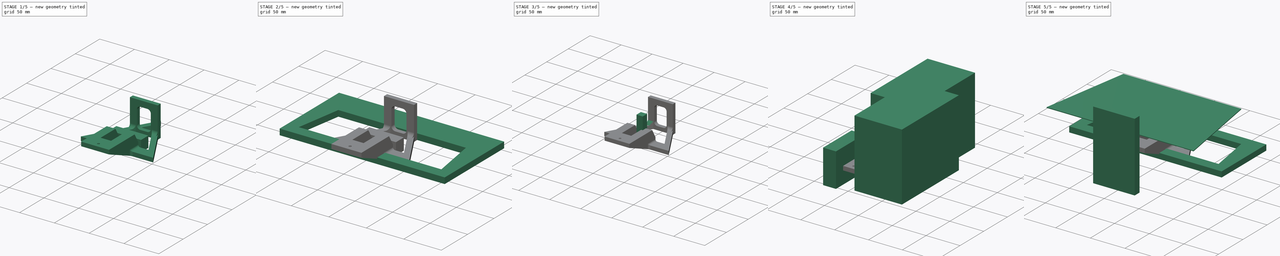
[diagram: build sequence overview — one tinted view per stage of 5, left to right]
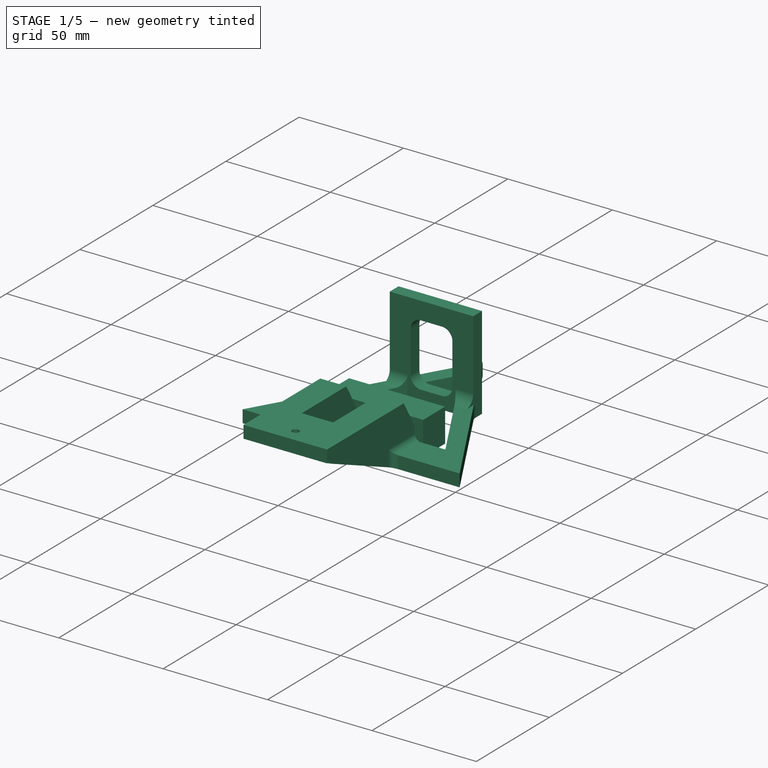
[diagram: stage 1 of 5 — iso view after this stage's code; geometry added in this stage tinted green]
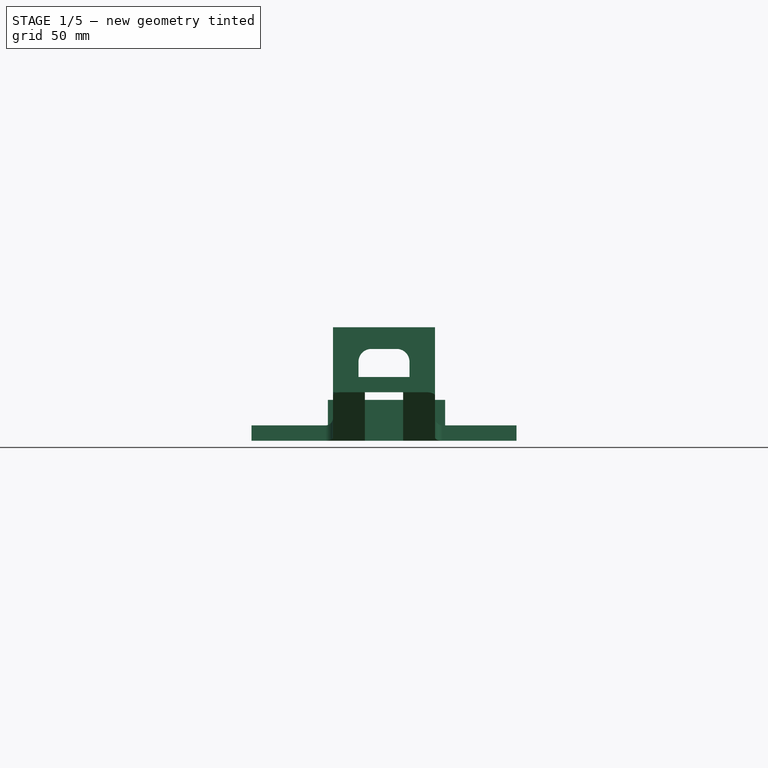
[diagram: stage 1 of 5 — front view after this stage's code; geometry added in this stage tinted green]
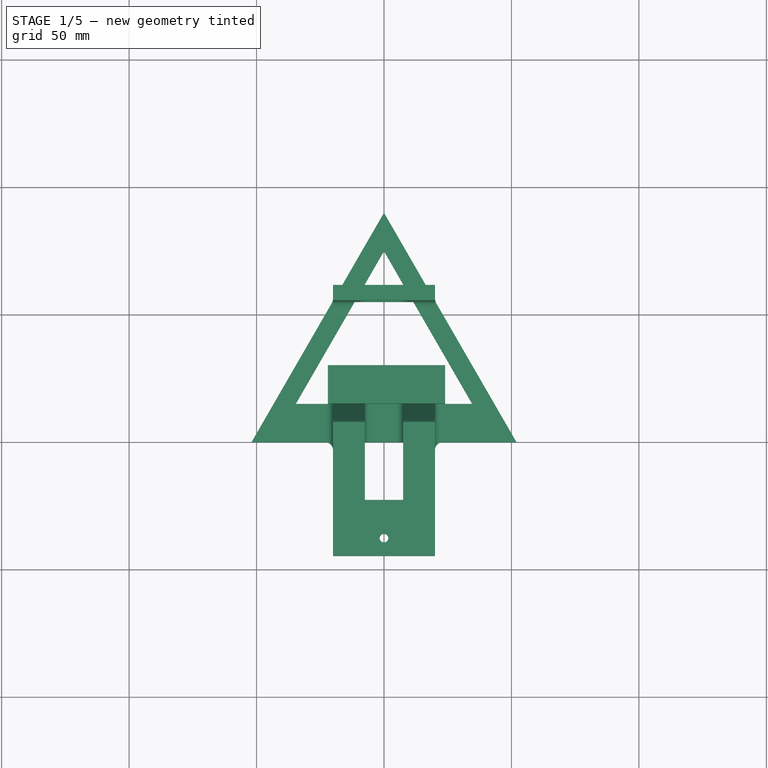
[diagram: stage 1 of 5 — top view after this stage's code; geometry added in this stage tinted green]
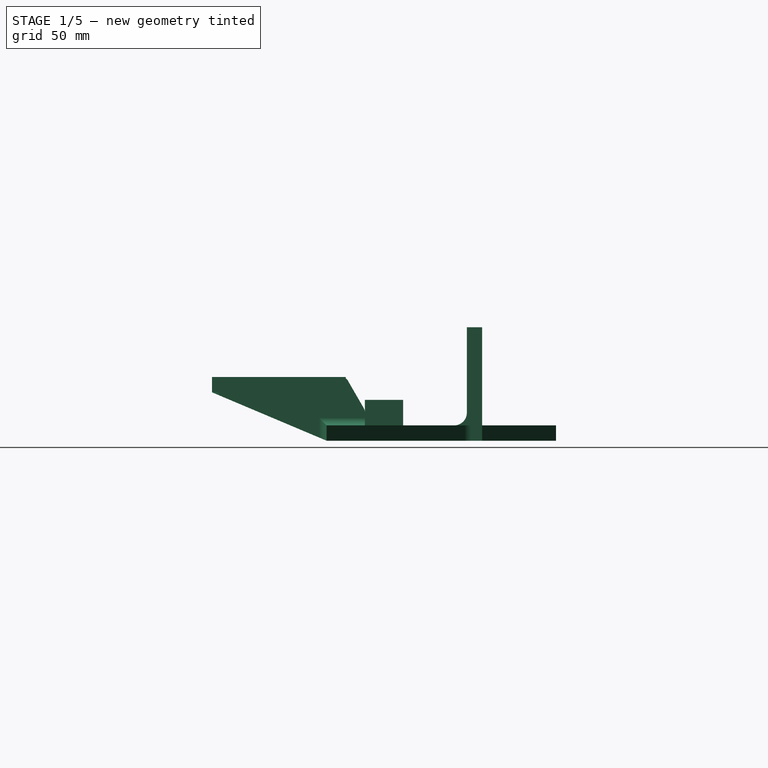
[diagram: stage 1 of 5 — right view after this stage's code; geometry added in this stage tinted green]
FCSTD DOCUMENT  (FreeCAD 0.18R4 (GitTag))
Label: soporte_celular_auto_v2
License: All rights reserved
LicenseURL: http://en.wikipedia.org/wiki/All_rights_reserved
objects: Part::Box×32, Part::Cut×26, Part::Fillet×17, Part::Extrusion×12, Sketcher::SketchObject×11, Part::MultiFuse×9, Part::Feature×7, Part::Prism×4, Part::Cylinder×3, Part::Chamfer×1
note: 122 computed .brp shape members not serialized (recipe doc carries the construction recipe); baked Part::Feature solids carry a one-line shape summary decoded from their .brp

FEATURE [Part::Box] Box021  label="Cube020"
  AttacherType = Attacher::AttachEngine3D
  Height = 22
  Length = 12.5
  Placement = pos=(7.5,0,3) rot=(0,0,1;0rad)
  Width = 7.5
FEATURE [Part::Cylinder] Cylinder002
  Angle = 360
  AttacherType = Attacher::AttachEngine3D
  Height = 30
  Placement = pos=(0,7,0) rot=(0,0,1;0rad)
  Radius = 1.7
FEATURE [Part::Prism] Prism004
  AttacherType = Attacher::AttachEngine3D
  Circumradius = 45
  Height = 6
  Placement = pos=(0,23,0) rot=(0,0,-1;0.523599rad)
  Polygon = 3
FEATURE [Part::Box] Box022  label="Cube021"
  AttacherType = Attacher::AttachEngine3D
  Height = 6
  Length = 40
  Placement = pos=(0,0,20) rot=(0,0,1;0rad)
  Width = 51
FEATURE [Part::Prism] Prism005
  AttacherType = Attacher::AttachEngine3D
  Circumradius = 60
  Height = 6
  Placement = pos=(0,23,0) rot=(0,0,-1;0.523599rad)
  Polygon = 3
FEATURE [Part::Cut] Cut004019
  Base = -> Prism005
  Placement = pos=(0,7,0) rot=(0,0,1;0rad)
  Tool = -> Prism004
FEATURE [Part::Box] Box025  label="Cube024"
  AttacherType = Attacher::AttachEngine3D
  Height = 6
  Length = 15
  Placement = pos=(12.5,22,20) rot=(0,0,1;0rad)
  Width = 70
FEATURE [Part::Cut] Cut004017
  Base = -> Box022
  Placement = pos=(-20,0,-1) rot=(0,0,1;0rad)
  Tool = -> Box025
FEATURE [Part::Cut] Cut004018
  Base = -> Cut004017
  Placement = pos=(0,-45,0) rot=(0,0,1;0rad)
  Tool = -> Cylinder002
FEATURE [Part::Box] Box026  label="Cube025"
  AttacherType = Attacher::AttachEngine3D
  Height = 6
  Length = 32
  Placement = pos=(-16,55,0) rot=(0,0,1;0rad)
  Width = 6
FEATURE [Part::Box] Box027  label="Cube026"
  AttacherType = Attacher::AttachEngine3D
  Height = 22
  Length = 12.5
  Placement = pos=(-20,0,3) rot=(0,0,1;0rad)
  Width = 7.5
FEATURE [Part::MultiFuse] Fusion004006
  Shapes = -> [Cut004018,Box021,Box027]
FEATURE [Part::Box] Box029  label="Cube028"
  AttacherType = Attacher::AttachEngine3D
  Height = 6
  Length = 78
  Placement = pos=(-39,0,0) rot=(0,0,1;0rad)
  Width = 15
FEATURE [Part::Box] Box031  label="Cube030"
  AttacherType = Attacher::AttachEngine3D
  Height = 16
  Length = 46
  Placement = pos=(-22,15,0) rot=(0,0,1;0rad)
  Width = 15
FEATURE [Part::Feature] Cut004022001  label="pieza_sin_refinar_v2.004"
  shape: bbox 103.9 x 106 x 44.5 mm, 42 faces (baked)
FEATURE [Part::Fillet] Fillet008008
  Base = -> Cut004022001
  Edges = 2 edges r=5: [Edge111,Edge116]
FEATURE [Part::Fillet] Fillet008009
  Base = -> Fillet008008
  Edges = 4 edges r=5: [Edge69,Edge70,Edge71,Edge72]
FEATURE [Part::Fillet] Fillet008010
  Base = -> Fillet008009
  Edges = 2 edges r=5: [Edge41,Edge54]
FEATURE [Part::Fillet] Fillet008011
  Base = -> Fillet008010
  Edges = 4 edges r=3: [Edge73,Edge86,Edge90,Edge106]
FEATURE [Part::Fillet] Fillet008012
  Base = -> Fillet008011
  Edges = 2 edges r=3: [Edge130,Edge134]
FEATURE [Part::Fillet] Fillet008013
  Base = -> Fillet008012
  Edges = 4 edges r=3: [Edge54,Edge59,Edge71,Edge75]
FEATURE [Part::Fillet] Fillet008014  label="pieza_v2.3"
  Base = -> Fillet008013
  Edges = 4 edges r=3: [Edge10,Edge55,Edge72,Edge79]
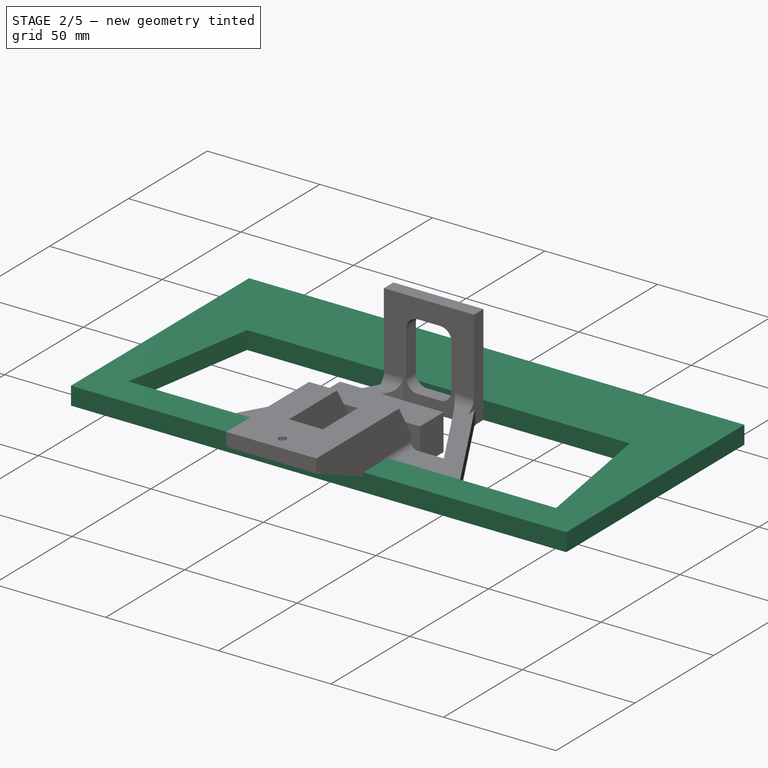
[diagram: stage 2 of 5 — iso view after this stage's code; geometry added in this stage tinted green]
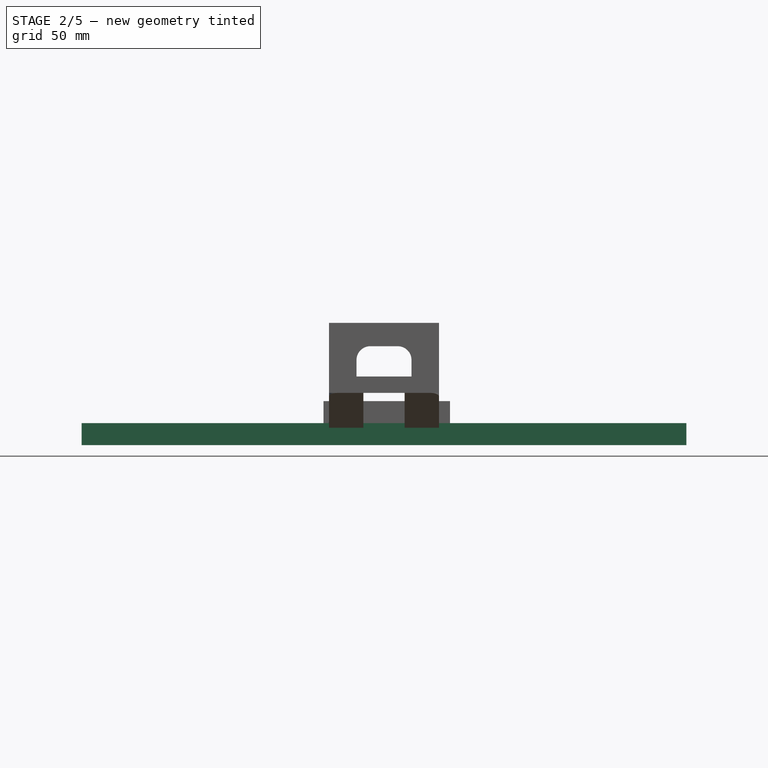
[diagram: stage 2 of 5 — front view after this stage's code; geometry added in this stage tinted green]
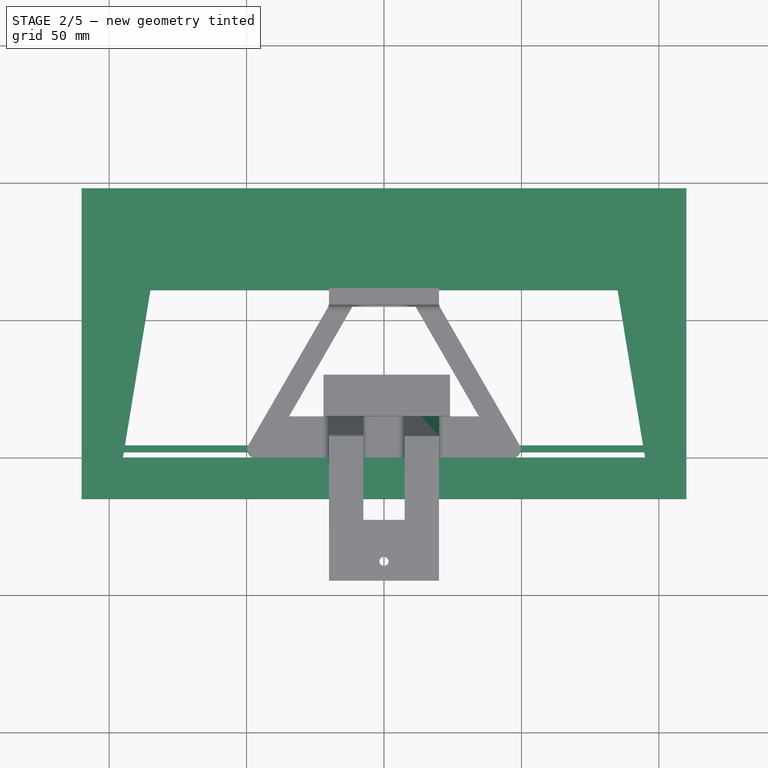
[diagram: stage 2 of 5 — top view after this stage's code; geometry added in this stage tinted green]
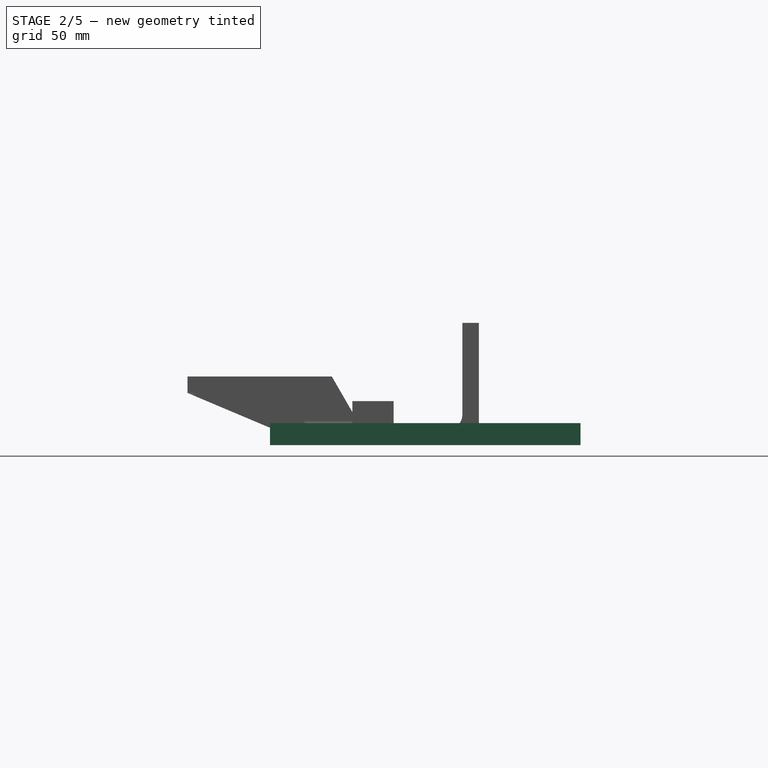
[diagram: stage 2 of 5 — right view after this stage's code; geometry added in this stage tinted green]
FEATURE [Part::Box] Box001  label="Cube001"
  AttacherType = Attacher::AttachEngine3D
  Height = 6
  Length = 32
  Placement = pos=(-16,55,0) rot=(0,0,1;0rad)
  Width = 6
FEATURE [Sketcher::SketchObject] Sketch002
  sketch-geometry (4):
    g0: LineSegment StartX=-95 StartY=0 StartZ=0 EndX=95 EndY=-9e-16 EndZ=0
    g1: LineSegment StartX=-95 StartY=0 StartZ=0 EndX=-85 EndY=61 EndZ=0
    g2: LineSegment StartX=95 StartY=-9e-16 StartZ=0 EndX=85 EndY=61 EndZ=0
    g3: LineSegment StartX=-85 StartY=61 StartZ=0 EndX=85 EndY=61 EndZ=0
  constraints (10):
    c: PointOnObject(g0,g-1)
    c: Symmetric(g0,g0,g-2)
    c: DistanceX(g0,g0) = 190
    c: Coincident(g1,g0)
    c: Coincident(g2,g0)
    c: Coincident(g3,g1)
    c: Coincident(g3,g2)
    c: Symmetric(g1,g2,g-2)
    c: DistanceX(g3,g3) = 170
    c: DistanceY(g0,g2) = 61
FEATURE [Part::Box] Box002  label="Cube002"
  AttacherType = Attacher::AttachEngine3D
  Height = 8
  Length = 220
  Placement = pos=(-110,-15,0) rot=(0,0,1;0rad)
  Width = 113
FEATURE [Part::Extrusion] Extrude001
  Base = -> Sketch002
  Dir = (0,0,1)
  DirMode = 2
  FaceMakerClass = Part::FaceMakerBullseye
  LengthFwd = 10
  LengthRev = 0
  Solid = true
  Symmetric = false
FEATURE [Part::Cut] Cut002  label="molde_cortador001"
  Base = -> Box002
  Tool = -> Extrude001
FEATURE [Part::Box] Box003  label="Cube003"
  AttacherType = Attacher::AttachEngine3D
  Height = 3
  Length = 220
  Placement = pos=(-110,2,0) rot=(0,0,1;0rad)
  Width = 2.5
FEATURE [Part::Box] Box006  label="Cube006"
  AttacherType = Attacher::AttachEngine3D
  Height = 6
  Length = 40
  Placement = pos=(0,0,20) rot=(0,0,1;0rad)
  Width = 51
FEATURE [Part::Box] Box007  label="Cube007"
  AttacherType = Attacher::AttachEngine3D
  Height = 6
  Length = 15
  Placement = pos=(12.5,22,20) rot=(0,0,1;0rad)
  Width = 70
FEATURE [Part::Cut] Cut004005
  Base = -> Box006
  Placement = pos=(-20,0,-1) rot=(0,0,1;0rad)
  Tool = -> Box007
FEATURE [Part::Cylinder] Cylinder
  Angle = 360
  AttacherType = Attacher::AttachEngine3D
  Height = 30
  Placement = pos=(0,7,0) rot=(0,0,1;0rad)
  Radius = 1.7
FEATURE [Part::Cut] Cut004006
  Base = -> Cut004005
  Placement = pos=(0,-45,0) rot=(0,0,1;0rad)
  Tool = -> Cylinder
FEATURE [Part::Box] Box009  label="Cube008"
  AttacherType = Attacher::AttachEngine3D
  Height = 22
  Length = 12.5
  Placement = pos=(7.5,0,3) rot=(0,0,1;0rad)
  Width = 7.5
FEATURE [Part::Box] Box010  label="Cube009"
  AttacherType = Attacher::AttachEngine3D
  Height = 22
  Length = 12.5
  Placement = pos=(-20,0,3) rot=(0,0,1;0rad)
  Width = 7.5
FEATURE [Part::MultiFuse] Fusion004002
  Shapes = -> [Cut004006,Box009,Box010]
FEATURE [Sketcher::SketchObject] Sketch009
  sketch-geometry (4):
    g0: LineSegment StartX=-95 StartY=0 StartZ=0 EndX=95 EndY=-9e-16 EndZ=0
    g1: LineSegment StartX=-95 StartY=0 StartZ=0 EndX=-85 EndY=61 EndZ=0
    g2: LineSegment StartX=95 StartY=-9e-16 StartZ=0 EndX=85 EndY=61 EndZ=0
    g3: LineSegment StartX=-85 StartY=61 StartZ=0 EndX=85 EndY=61 EndZ=0
  constraints (10):
    c: PointOnObject(g0,g-1)
    c: Symmetric(g0,g0,g-2)
    c: DistanceX(g0,g0) = 190
    c: Coincident(g1,g0)
    c: Coincident(g2,g0)
    c: Coincident(g3,g1)
    c: Coincident(g3,g2)
    c: Symmetric(g1,g2,g-2)
    c: DistanceX(g3,g3) = 170
    c: DistanceY(g0,g2) = 61
FEATURE [Part::Extrusion] Extrude011
  Base = -> Sketch009
  Dir = (0,0,1)
  DirMode = 2
  FaceMakerClass = Part::FaceMakerBullseye
  LengthFwd = 10
  LengthRev = 0
  Solid = true
  Symmetric = false
FEATURE [Part::Box] Box023  label="Cube022"
  AttacherType = Attacher::AttachEngine3D
  Height = 3
  Length = 220
  Placement = pos=(-110,2,0) rot=(0,0,1;0rad)
  Width = 2.5
FEATURE [Part::Box] Box024  label="Cube023"
  AttacherType = Attacher::AttachEngine3D
  Height = 8
  Length = 220
  Placement = pos=(-110,-15,0) rot=(0,0,1;0rad)
  Width = 113
FEATURE [Part::Cut] Cut004020  label="molde_cortador002"
  Base = -> Box024
  Tool = -> Extrude011
FEATURE [Part::MultiFuse] Fusion004005
  Shapes = -> [Cut004019,Box026]
FEATURE [Part::Cut] Cut004015  label="base_triangulo001"
  Base = -> Fusion004005
  Tool = -> Cut004020
FEATURE [Part::Cut] Cut004016  label="base_triangulo_con_canaleta001"
  Base = -> Cut004015
  Tool = -> Box023
FEATURE [Sketcher::SketchObject] Sketch010
  ExternalGeometry = -> [Fusion004006,Cut004016]
  MapMode = 5
  Placement = pos=(-20,0,0) rot=(0.57735,-0.57735,-0.57735;2.0944rad)
  Support = -> [Fusion004006]
  sketch-geometry (3):
    g0: LineSegment StartX=-7.5 StartY=0 StartZ=0 EndX=-7.5 EndY=25 EndZ=0
    g1: LineSegment StartX=-7.5 StartY=25 StartZ=0 EndX=-21.9338 EndY=0 EndZ=0
    g2: LineSegment StartX=-21.9338 StartY=0 StartZ=0 EndX=-7.5 EndY=0 EndZ=0
  constraints (8):
    c: Vertical(g0)
    c: Coincident(g0,g1)
    c: Coincident(g1,g2)
    c: Horizontal(g2)
    c: Coincident(g0,g2)
    c: Angle(g2,g1) = 1.0472
    c: DistanceY(g0,g-1) = 0
    c: Coincident(g0,g-3)
FEATURE [Part::Extrusion] Extrude012
  Base = -> Sketch010
  Dir = (-1,0,0)
  DirMode = 2
  FaceMakerClass = Part::FaceMakerBullseye
  LengthFwd = -12.5
  LengthRev = 0
  Placement = pos=(27.5,0,0) rot=(0,0,1;0rad)
  Solid = true
  Symmetric = false
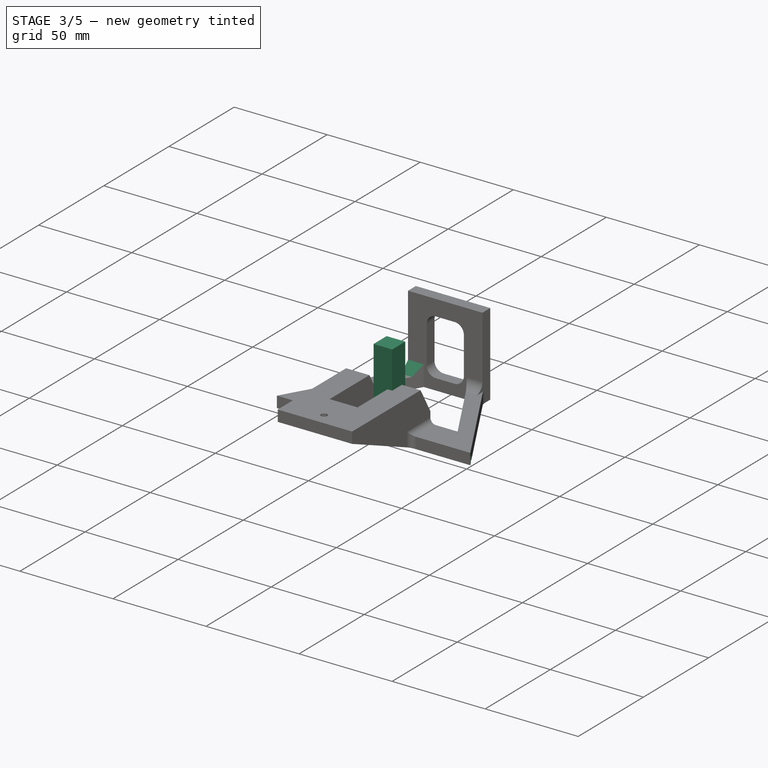
[diagram: stage 3 of 5 — iso view after this stage's code; geometry added in this stage tinted green]
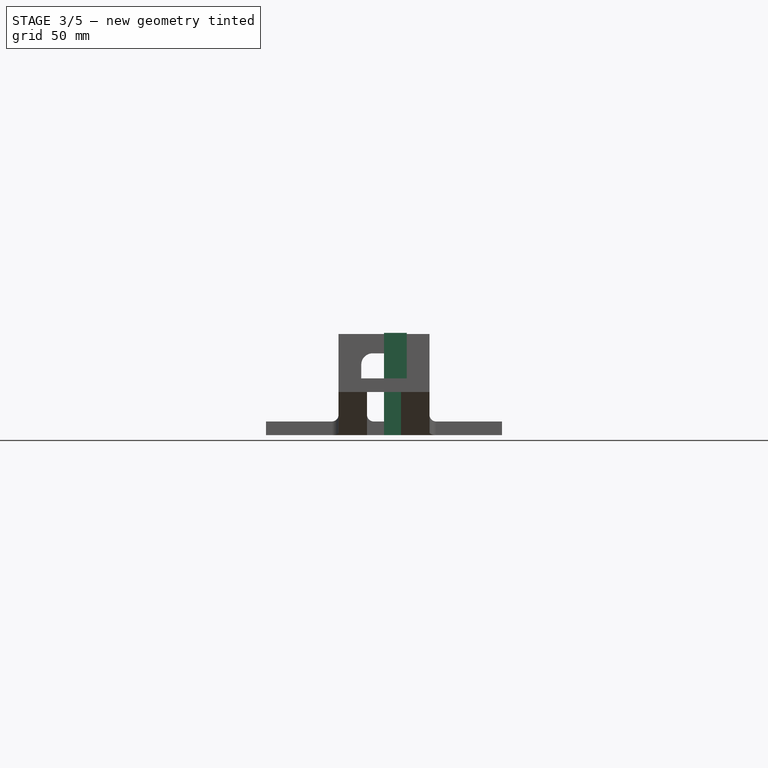
[diagram: stage 3 of 5 — front view after this stage's code; geometry added in this stage tinted green]
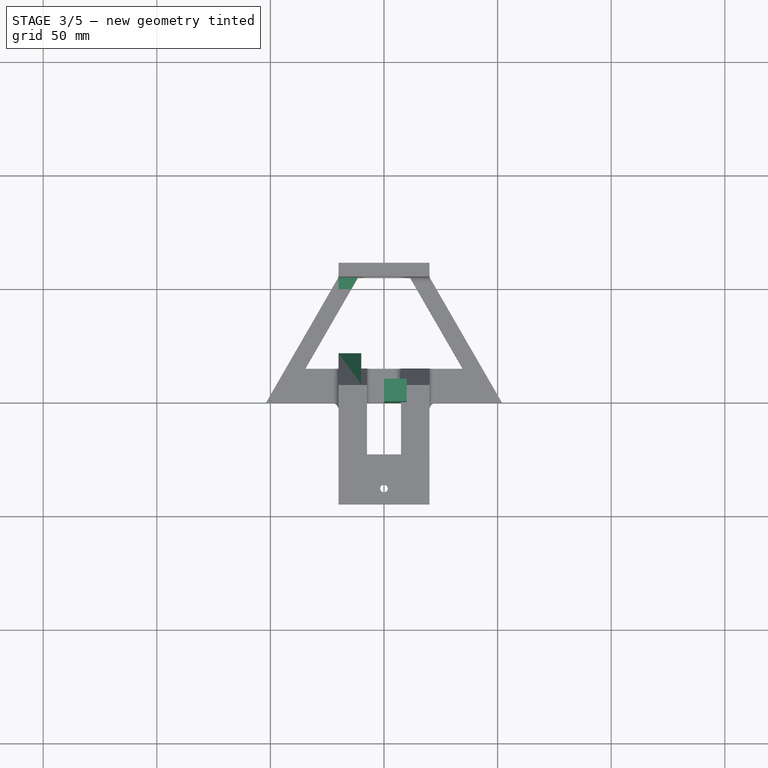
[diagram: stage 3 of 5 — top view after this stage's code; geometry added in this stage tinted green]
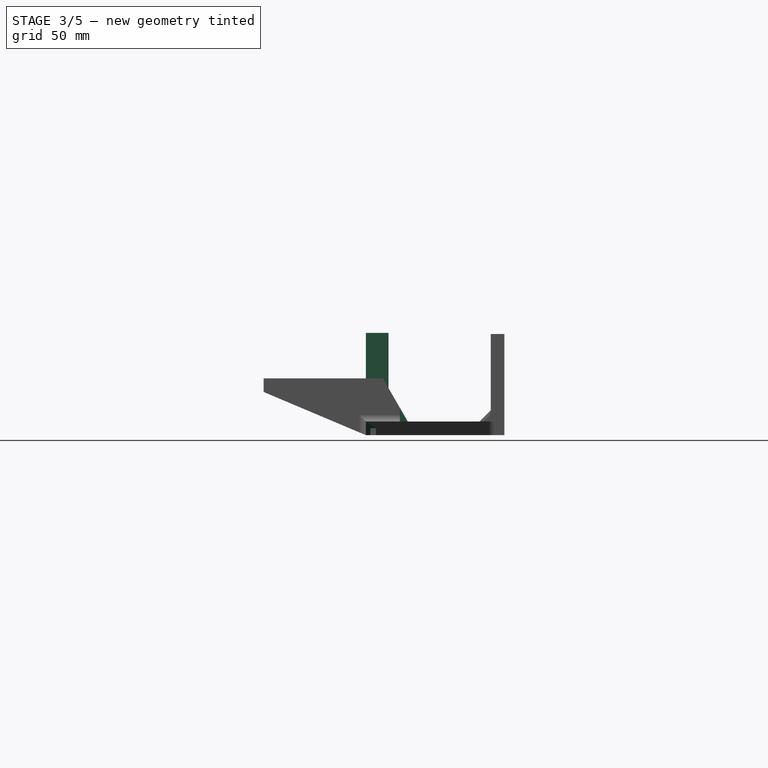
[diagram: stage 3 of 5 — right view after this stage's code; geometry added in this stage tinted green]
FEATURE [Part::Prism] Prism002
  AttacherType = Attacher::AttachEngine3D
  Circumradius = 60
  Height = 6
  Placement = pos=(0,23,0) rot=(0,0,-1;0.523599rad)
  Polygon = 3
FEATURE [Part::Prism] Prism003
  AttacherType = Attacher::AttachEngine3D
  Circumradius = 45
  Height = 6
  Placement = pos=(0,23,0) rot=(0,0,-1;0.523599rad)
  Polygon = 3
FEATURE [Part::Cut] Cut001
  Base = -> Prism002
  Placement = pos=(0,7,0) rot=(0,0,1;0rad)
  Tool = -> Prism003
FEATURE [Part::MultiFuse] Fusion
  Shapes = -> [Cut001,Box001]
FEATURE [Part::Cut] Cut003  label="base_triangulo"
  Base = -> Fusion
  Tool = -> Cut002
FEATURE [Part::Cut] Cut004  label="base_triangulo_con_canaleta"
  Base = -> Cut003
  Tool = -> Box003
FEATURE [Part::Box] Box004  label="Cube004"
  AttacherType = Attacher::AttachEngine3D
  Height = 44.5
  Length = 40
  Placement = pos=(-20,55,0) rot=(0,0,1;0rad)
  Width = 6
FEATURE [Part::Box] Box005  label="Cube005"
  AttacherType = Attacher::AttachEngine3D
  Height = 30
  Length = 20
  Placement = pos=(-10,55,6) rot=(0,0,1;0rad)
  Width = 6
FEATURE [Part::Cut] Cut004004  label="parte_trasera"
  Base = -> Box004
  Tool = -> Box005
FEATURE [Sketcher::SketchObject] Sketch007
  ExternalGeometry = -> [Fusion004002,Cut004]
  MapMode = 5
  Placement = pos=(-20,0,0) rot=(0.57735,-0.57735,-0.57735;2.0944rad)
  Support = -> [Fusion004002]
  sketch-geometry (3):
    g0: LineSegment StartX=0 StartY=0 StartZ=0 EndX=0 EndY=19 EndZ=0
    g1: LineSegment StartX=0 StartY=19 StartZ=0 EndX=45 EndY=19 EndZ=0
    g2: LineSegment StartX=45 StartY=19 StartZ=0 EndX=0 EndY=0 EndZ=0
  constraints (7):
    c: PointOnObject(g0,g-1)
    c: Vertical(g0)
    c: Coincident(g1,g0)
    c: Coincident(g0,g-3)
    c: Coincident(g1,g-3)
    c: Coincident(g2,g1)
    c: Coincident(g2,g0)
FEATURE [Part::Extrusion] Extrude008
  Base = -> Sketch007
  Dir = (-1,0,0)
  DirMode = 2
  FaceMakerClass = Part::FaceMakerBullseye
  LengthFwd = 0
  LengthRev = 12.5
  Solid = true
  Symmetric = false
FEATURE [Part::Extrusion] Extrude009
  Base = -> Sketch007
  Dir = (-1,0,0)
  DirMode = 2
  FaceMakerClass = Part::FaceMakerBullseye
  LengthFwd = 12.5
  LengthRev = 0
  Placement = pos=(40,0,0) rot=(0,0,1;0rad)
  Solid = true
  Symmetric = false
FEATURE [Sketcher::SketchObject] Sketch008
  ExternalGeometry = -> [Fusion004002,Cut004]
  MapMode = 5
  Placement = pos=(-20,0,0) rot=(0.57735,-0.57735,-0.57735;2.0944rad)
  Support = -> [Fusion004002]
  sketch-geometry (3):
    g0: LineSegment StartX=-7.5 StartY=0 StartZ=0 EndX=-7.5 EndY=25 EndZ=0
    g1: LineSegment StartX=-7.5 StartY=25 StartZ=0 EndX=-21.9338 EndY=0 EndZ=0
    g2: LineSegment StartX=-21.9338 StartY=0 StartZ=0 EndX=-7.5 EndY=0 EndZ=0
  constraints (8):
    c: Vertical(g0)
    c: Coincident(g0,g1)
    c: Coincident(g1,g2)
    c: Horizontal(g2)
    c: Coincident(g0,g2)
    c: Angle(g2,g1) = 1.0472
    c: DistanceY(g0,g-1) = 0
    c: Coincident(g0,g-3)
FEATURE [Part::Extrusion] Extrude010
  Base = -> Sketch008
  Dir = (-1,0,0)
  DirMode = 2
  FaceMakerClass = Part::FaceMakerBullseye
  LengthFwd = -12.5
  LengthRev = 0
  Solid = true
  Symmetric = false
FEATURE [Part::MultiFuse] Fusion004007
  Shapes = -> [Extrude010,Extrude012,Extrude009,Extrude008,Fusion004002]
FEATURE [Part::MultiFuse] Fusion004008  label="parte_frontal"
  Shapes = -> [Fusion004006,Fusion004007]
FEATURE [Part::MultiFuse] Fusion004009  label="pieza_sin_refinar"
  Shapes = -> [Cut004004,Cut004016,Fusion004008]
FEATURE [Part::Box] Box028  label="Cube027"
  AttacherType = Attacher::AttachEngine3D
  Height = 113
  Length = 109
  Placement = pos=(-10,-55,0) rot=(0,0,1;0rad)
  Width = 156
FEATURE [Part::Feature] Chamfer001  label="soporte_v2.2_for_test"
  shape: bbox 101 x 106 x 42 mm, 68 faces (baked)
FEATURE [Part::Cut] Cut004021  label="test_v2.2"
  Base = -> Chamfer001
  Tool = -> Box028
FEATURE [Part::MultiFuse] Fusion004009002  label="pieza_sin_refinar_reforzada"
  Shapes = -> [Fusion004009,Box029]
FEATURE [Part::Box] Box030  label="Cube029"
  AttacherType = Attacher::AttachEngine3D
  Height = 45
  Length = 10
  Width = 10
FEATURE [Part::Cut] Cut004022  label="pieza_sin_refinar_v2.3"
  Base = -> Fusion004009002
  Tool = -> Box031
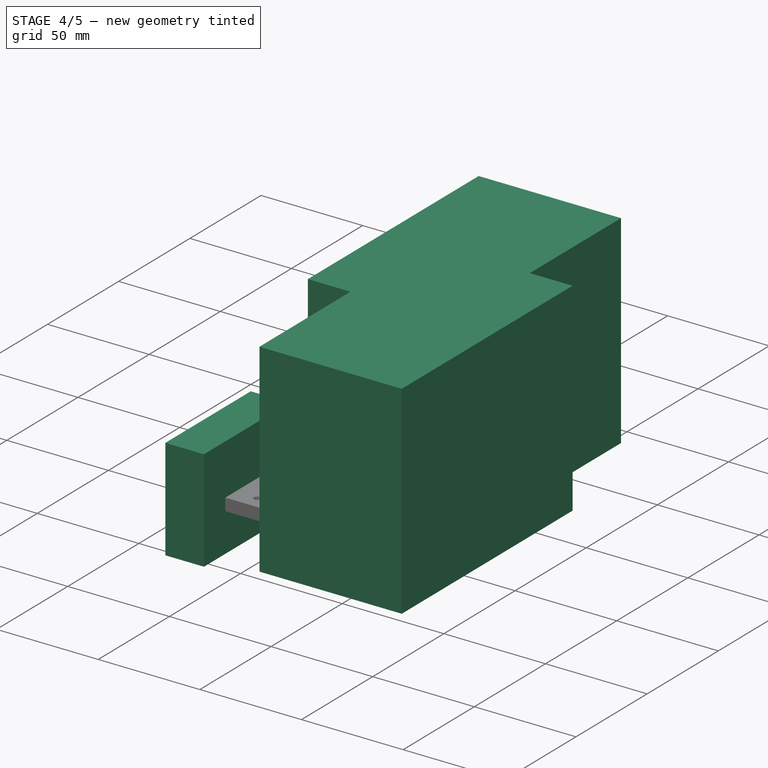
[diagram: stage 4 of 5 — iso view after this stage's code; geometry added in this stage tinted green]
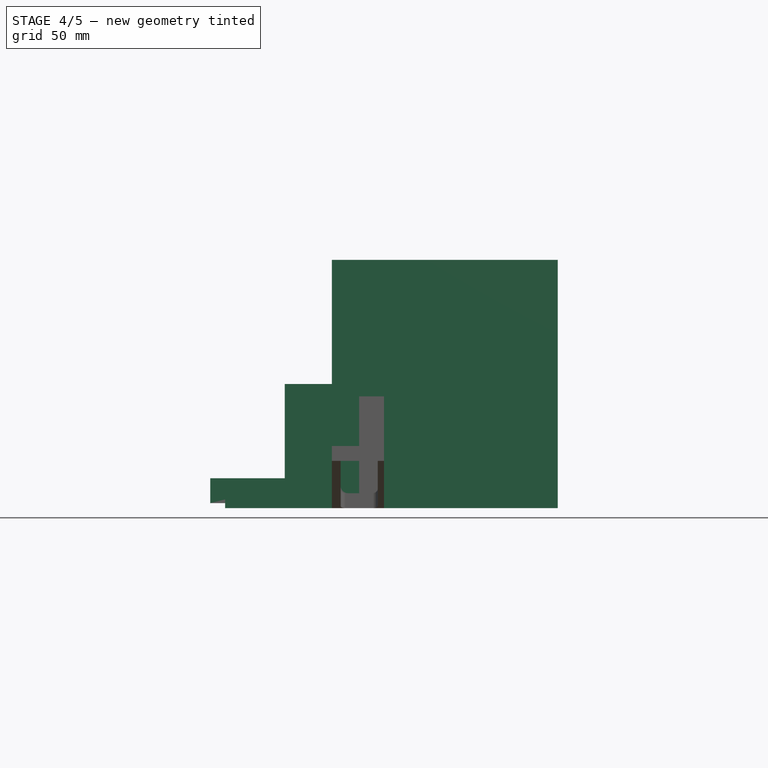
[diagram: stage 4 of 5 — front view after this stage's code; geometry added in this stage tinted green]
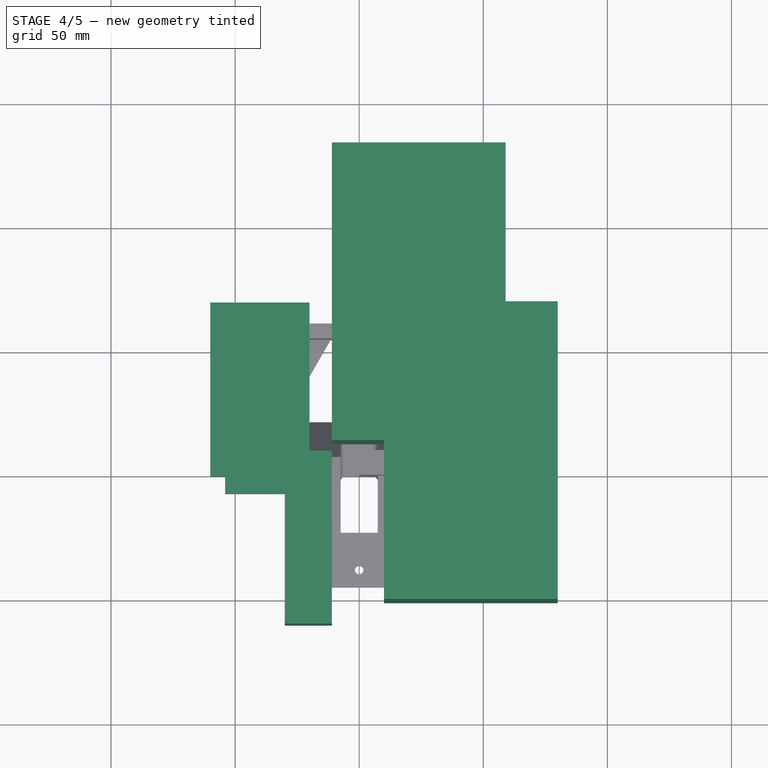
[diagram: stage 4 of 5 — top view after this stage's code; geometry added in this stage tinted green]
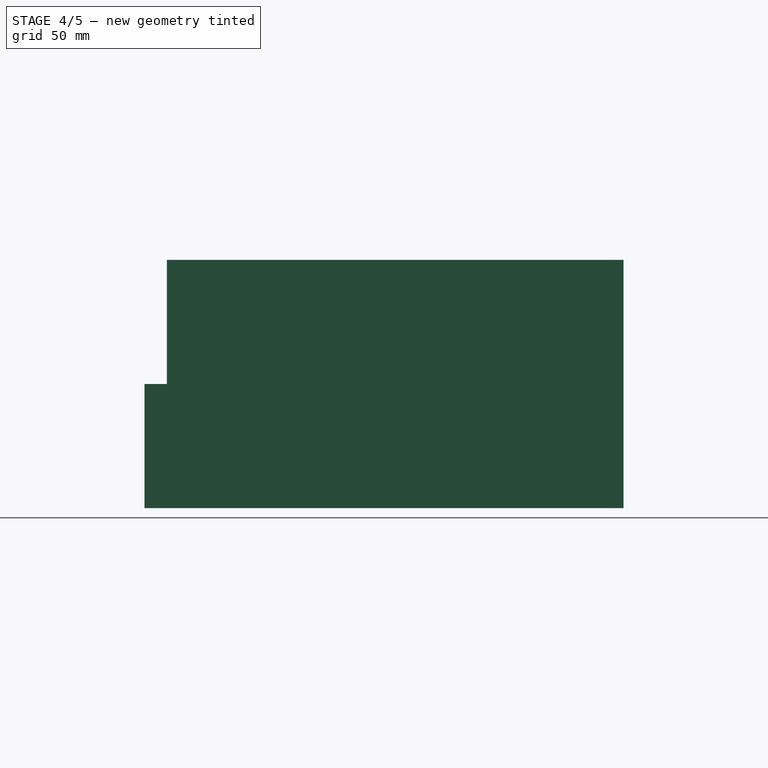
[diagram: stage 4 of 5 — right view after this stage's code; geometry added in this stage tinted green]
FEATURE [Part::Feature] Fillet008001  label="soporte_final_v2.002"
  shape: bbox 99.53 x 106 x 53 mm, 50 faces (baked)
FEATURE [Part::Box] Box011  label="Cube010"
  AttacherType = Attacher::AttachEngine3D
  Height = 100
  Length = 70
  Placement = pos=(10,-51,0) rot=(0,0,1;0rad)
  Width = 120
FEATURE [Part::Box] Box012  label="Cube011"
  AttacherType = Attacher::AttachEngine3D
  Height = 100
  Length = 70
  Placement = pos=(-11,13,0) rot=(0,0,1;0rad)
  Width = 120
FEATURE [Part::Box] Box013  label="Cube012"
  AttacherType = Attacher::AttachEngine3D
  Height = 10
  Length = 40
  Placement = pos=(-60,0,2) rot=(0,0,1;0rad)
  Width = 70
FEATURE [Part::Box] Box014  label="Cube013"
  AttacherType = Attacher::AttachEngine3D
  Height = 50
  Length = 19
  Placement = pos=(-30,-60,0) rot=(0,0,1;0rad)
  Width = 60
FEATURE [Part::Box] Box015  label="Cube014"
  AttacherType = Attacher::AttachEngine3D
  Height = 30
  Length = 10
  Placement = pos=(-21,0,2) rot=(0,0,1;0rad)
  Width = 10
FEATURE [Part::Box] Box016  label="Cube015"
  AttacherType = Attacher::AttachEngine3D
  Height = 10
  Length = 40
  Placement = pos=(-54,-7,0) rot=(0,0,1;0rad)
  Width = 10
FEATURE [Part::Box] Box017  label="Cube016"
  AttacherType = Attacher::AttachEngine3D
  Height = 22
  Length = 12.5
  Placement = pos=(7.5,0,3) rot=(0,0,1;0rad)
  Width = 7.5
FEATURE [Part::Cylinder] Cylinder001
  Angle = 360
  AttacherType = Attacher::AttachEngine3D
  Height = 30
  Placement = pos=(0,7,0) rot=(0,0,1;0rad)
  Radius = 1.7
FEATURE [Part::Box] Box018  label="Cube017"
  AttacherType = Attacher::AttachEngine3D
  Height = 6
  Length = 40
  Placement = pos=(0,0,20) rot=(0,0,1;0rad)
  Width = 51
FEATURE [Part::Box] Box019  label="Cube018"
  AttacherType = Attacher::AttachEngine3D
  Height = 6
  Length = 15
  Placement = pos=(12.5,22,20) rot=(0,0,1;0rad)
  Width = 70
FEATURE [Part::Cut] Cut004013
  Base = -> Box018
  Placement = pos=(-20,0,-1) rot=(0,0,1;0rad)
  Tool = -> Box019
FEATURE [Part::Cut] Cut004014
  Base = -> Cut004013
  Placement = pos=(0,-45,0) rot=(0,0,1;0rad)
  Tool = -> Cylinder001
FEATURE [Part::Box] Box020  label="Cube019"
  AttacherType = Attacher::AttachEngine3D
  Height = 22
  Length = 12.5
  Placement = pos=(-20,0,3) rot=(0,0,1;0rad)
  Width = 7.5
FEATURE [Part::MultiFuse] Fusion004004
  Shapes = -> [Cut004014,Box017,Box020]
FEATURE [Part::Feature] Fusion004009001  label="pieza_sin_refinar001"
  shape: bbox 103.9 x 106 x 42 mm, 40 faces (baked)
FEATURE [Part::Fillet] Fillet
  Base = -> Fusion004009001
  Edges = 12 edges r=2: [Edge4,Edge8,Edge38,Edge44,Edge56,Edge57,Edge60,Edge62,Edge64,Edge66,Edge67,Edge68]
FEATURE [Part::Fillet] Fillet008003
  Base = -> Fillet
  Edges = 2 edges r=2: [Edge92,Edge98]
FEATURE [Part::Fillet] Fillet008004
  Base = -> Fillet008003
  Edges = 4 edges r=2: [Edge22,Edge28,Edge83,Edge88]
FEATURE [Part::Fillet] Fillet008005
  Base = -> Fillet008004
  Edges = 4 edges r=5: [Edge105,Edge107,Edge108,Edge111]
FEATURE [Part::Fillet] Fillet008006
  Base = -> Fillet008005
  Edges = 2 edges r=1: [Edge107,Edge131]
FEATURE [Part::Fillet] Fillet008007
  Base = -> Fillet008006
  Edges = 2 edges r=2: [Edge3,Edge23]
FEATURE [Part::Chamfer] Chamfer  label="soporte_v2.2"
  Base = -> Fillet008007
  Edges = 2 edges r=5: [Edge154,Edge156]
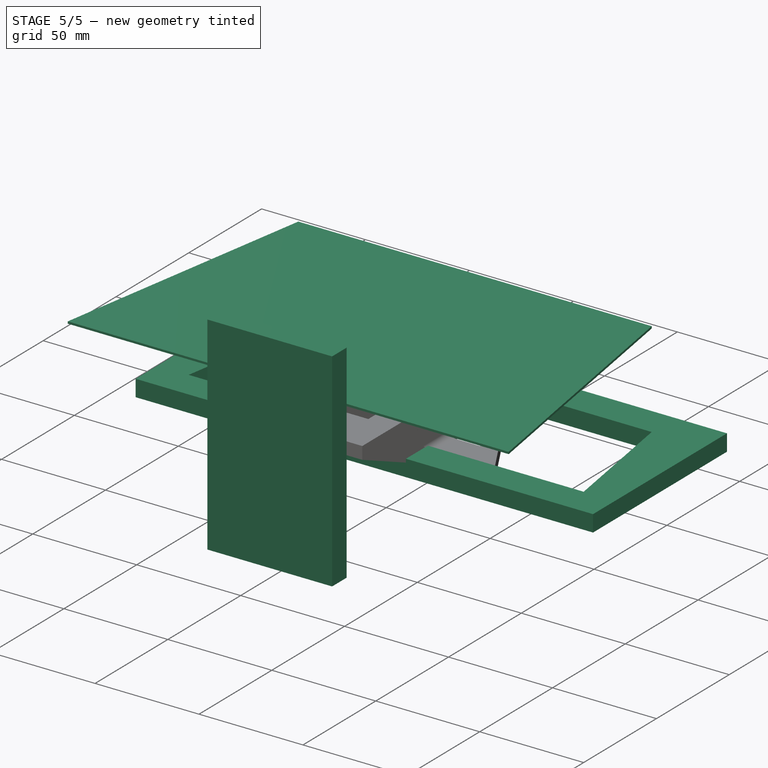
[diagram: stage 5 of 5 — iso view after this stage's code; geometry added in this stage tinted green]
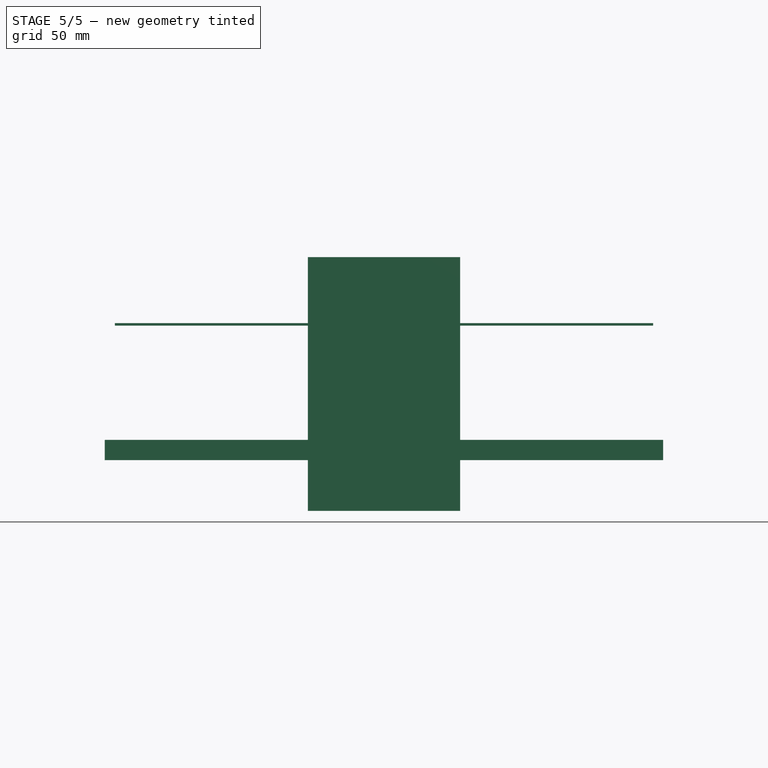
[diagram: stage 5 of 5 — front view after this stage's code; geometry added in this stage tinted green]
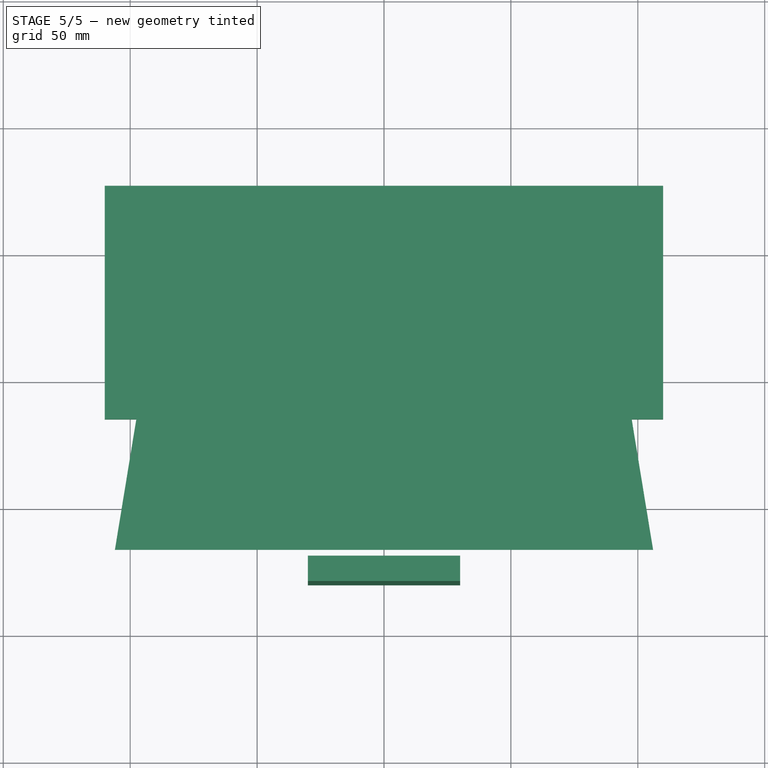
[diagram: stage 5 of 5 — top view after this stage's code; geometry added in this stage tinted green]
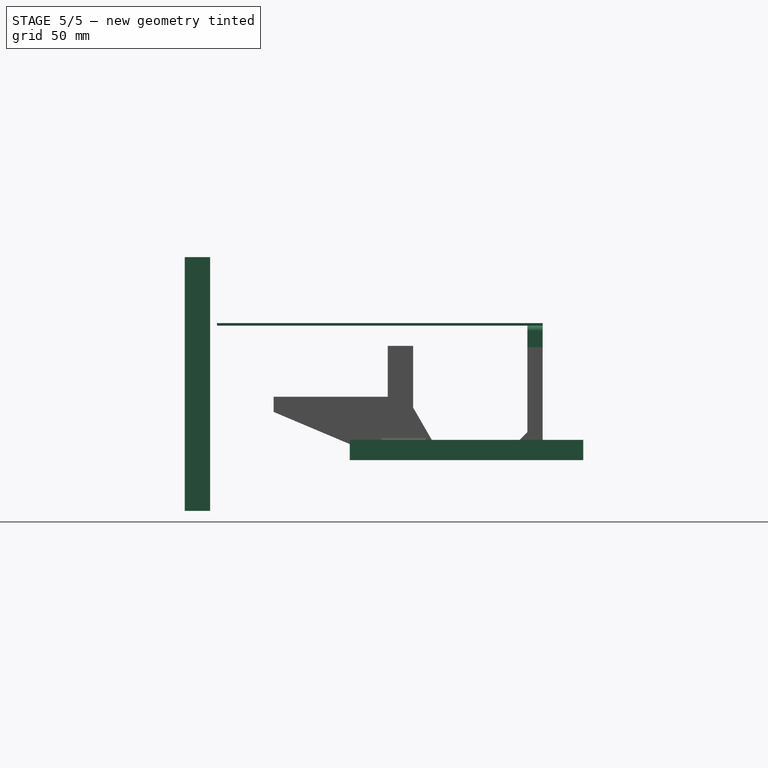
[diagram: stage 5 of 5 — right view after this stage's code; geometry added in this stage tinted green]
FEATURE [Sketcher::SketchObject] Sketch001
  sketch-geometry (4):
    g0: LineSegment StartX=-95 StartY=0 StartZ=0 EndX=95 EndY=-9e-16 EndZ=0
    g1: LineSegment StartX=-95 StartY=0 StartZ=0 EndX=-85 EndY=61 EndZ=0
    g2: LineSegment StartX=95 StartY=-9e-16 StartZ=0 EndX=85 EndY=61 EndZ=0
    g3: LineSegment StartX=-85 StartY=61 StartZ=0 EndX=85 EndY=61 EndZ=0
  constraints (10):
    c: PointOnObject(g0,g-1)
    c: Symmetric(g0,g0,g-2)
    c: DistanceX(g0,g0) = 190
    c: Coincident(g1,g0)
    c: Coincident(g2,g0)
    c: Coincident(g3,g1)
    c: Coincident(g3,g2)
    c: Symmetric(g1,g2,g-2)
    c: DistanceX(g3,g3) = 170
    c: DistanceY(g0,g2) = 61
FEATURE [Part::Extrusion] Extrude
  Base = -> Sketch001
  Dir = (0,0,1)
  DirMode = 2
  FaceMakerClass = Part::FaceMakerBullseye
  LengthFwd = 10
  LengthRev = 0
  Solid = true
  Symmetric = false
FEATURE [Part::Box] Box  label="Cube"
  AttacherType = Attacher::AttachEngine3D
  Height = 8
  Length = 220
  Placement = pos=(-110,-15,0) rot=(0,0,1;0rad)
  Width = 92
FEATURE [Part::Cut] Cut  label="molde_cortador"
  Base = -> Box
  Tool = -> Extrude
FEATURE [Part::Feature] Fusion001
  shape: bbox 190 x 63 x 3 mm, 10 faces (baked)
FEATURE [Sketcher::SketchObject] Sketch003
  ExternalGeometry = -> [Fusion001]
  sketch-geometry (4):
    g0: LineSegment StartX=-87.5 StartY=0 StartZ=0 EndX=87.5 EndY=0 EndZ=0
    g1: LineSegment StartX=-87.5 StartY=0 StartZ=0 EndX=-80 EndY=49 EndZ=0
    g2: LineSegment StartX=87.5 StartY=0 StartZ=0 EndX=80 EndY=49 EndZ=0
    g3: LineSegment StartX=-80 StartY=49 StartZ=0 EndX=80 EndY=49 EndZ=0
  constraints (10):
    c: PointOnObject(g0,g-1)
    c: Symmetric(g0,g0,g-2)
    c: DistanceX(g0,g0) = 175
    c: Coincident(g1,g0)
    c: Coincident(g2,g0)
    c: Coincident(g3,g1)
    c: Coincident(g3,g2)
    c: Symmetric(g1,g2,g-2)
    c: DistanceX(g3,g3) = 160
    c: DistanceY(g0,g2) = 49
FEATURE [Part::Extrusion] Extrude002
  Base = -> Sketch003
  Dir = (0,0,1)
  DirMode = 2
  FaceMakerClass = Part::FaceMakerBullseye
  LengthFwd = 10
  LengthRev = 0
  Placement = pos=(0,5,0) rot=(0,0,1;0rad)
  Solid = true
  Symmetric = false
FEATURE [Part::Cut] Cut004002  label="base"
  Base = -> Fusion001
  Tool = -> Extrude002
FEATURE [Sketcher::SketchObject] Sketch004
  ExternalGeometry = -> [Cut004002]
  MapMode = 5
  Placement = pos=(-92.5137,15.1662,-3.7e-15) rot=(-0.51489,0.606172,0.606172;4.09257rad)
  Support = -> [Cut004002]
  sketch-geometry (4):
    g0: LineSegment StartX=-46.4456 StartY=3 StartZ=0 EndX=17.3423 EndY=3 EndZ=0
    g1: LineSegment StartX=-46.4456 StartY=3 StartZ=0 EndX=-46.4456 EndY=53 EndZ=0
    g2: LineSegment StartX=-46.4456 StartY=53 StartZ=0 EndX=83.5544 EndY=53 EndZ=0
    g3: LineSegment StartX=83.5544 StartY=53 StartZ=0 EndX=17.3423 EndY=3 EndZ=0
  constraints (10):
    c: Coincident(g0,g-4)
    c: Coincident(g0,g-3)
    c: Vertical(g1)
    c: Coincident(g0,g1)
    c: DistanceY(g1,g1) = 50
    c: Coincident(g2,g1)
    c: Horizontal(g2)
    c: DistanceX(g2,g2) = 130
    c: Coincident(g3,g2)
    c: Coincident(g3,g0)
FEATURE [Part::Feature] Fusion002
  shape: bbox 190 x 63 x 3 mm, 10 faces (baked)
FEATURE [Sketcher::SketchObject] Sketch005
  ExternalGeometry = -> [Fusion002]
  sketch-geometry (4):
    g0: LineSegment StartX=-87.5 StartY=0 StartZ=0 EndX=87.5 EndY=0 EndZ=0
    g1: LineSegment StartX=-87.5 StartY=0 StartZ=0 EndX=-80 EndY=49 EndZ=0
    g2: LineSegment StartX=87.5 StartY=0 StartZ=0 EndX=80 EndY=49 EndZ=0
    g3: LineSegment StartX=-80 StartY=49 StartZ=0 EndX=80 EndY=49 EndZ=0
  constraints (10):
    c: PointOnObject(g0,g-1)
    c: Symmetric(g0,g0,g-2)
    c: DistanceX(g0,g0) = 175
    c: Coincident(g1,g0)
    c: Coincident(g2,g0)
    c: Coincident(g3,g1)
    c: Coincident(g3,g2)
    c: Symmetric(g1,g2,g-2)
    c: DistanceX(g3,g3) = 160
    c: DistanceY(g0,g2) = 49
FEATURE [Part::Extrusion] Extrude003
  Base = -> Sketch005
  Dir = (0,0,1)
  DirMode = 2
  FaceMakerClass = Part::FaceMakerBullseye
  LengthFwd = 10
  LengthRev = 0
  Placement = pos=(0,5,0) rot=(0,0,1;0rad)
  Solid = true
  Symmetric = false
FEATURE [Part::Cut] Cut004003  label="base001"
  Base = -> Fusion002
  Tool = -> Extrude003
FEATURE [Sketcher::SketchObject] Sketch006
  ExternalGeometry = -> [Cut004003]
  MapMode = 5
  Placement = pos=(92.5137,15.1662,-2.34e-14) rot=(0.51489,0.606172,0.606172;2.19062rad)
  Support = -> [Cut004003]
  sketch-geometry (4):
    g0: LineSegment StartX=-17.3423 StartY=3 StartZ=0 EndX=46.4456 EndY=3 EndZ=0
    g1: LineSegment StartX=46.4456 StartY=3 StartZ=0 EndX=46.4456 EndY=53 EndZ=0
    g2: LineSegment StartX=46.4456 StartY=53 StartZ=0 EndX=-83.5544 EndY=53 EndZ=0
    g3: LineSegment StartX=-83.5544 StartY=53 StartZ=0 EndX=-17.3423 EndY=3 EndZ=0
  constraints (10):
    c: Coincident(g0,g-4)
    c: Coincident(g0,g-3)
    c: Coincident(g1,g0)
    c: Vertical(g1)
    c: DistanceY(g1,g1) = 50
    c: Coincident(g2,g1)
    c: Horizontal(g2)
    c: Coincident(g3,g2)
    c: DistanceX(g2,g2) = 130
    c: Coincident(g0,g3)
FEATURE [Part::Extrusion] Extrude004
  Base = -> Sketch006
  Dir = (0.986828,0.161775,-2e-16)
  DirMode = 2
  FaceMakerClass = Part::FaceMakerBullseye
  LengthFwd = 20
  LengthRev = 0
  Solid = true
  Symmetric = false
FEATURE [Part::Extrusion] Extrude006
  Base = -> Sketch004
  Dir = (-0.986828,0.161775,-1e-16)
  DirMode = 2
  FaceMakerClass = Part::FaceMakerBullseye
  LengthFwd = 20
  LengthRev = 0
  Solid = true
  Symmetric = false
FEATURE [Sketcher::SketchObject] Sketch
  ExternalGeometry = -> [Extrude006,Extrude004]
  sketch-geometry (4):
    g0: LineSegment StartX=-85 StartY=61 StartZ=0 EndX=85 EndY=61 EndZ=0
    g1: LineSegment StartX=-106.031 StartY=-67.2876 StartZ=0 EndX=106.031 EndY=-67.2876 EndZ=0
    g2: LineSegment StartX=-85 StartY=61 StartZ=0 EndX=-106.031 EndY=-67.2876 EndZ=0
    g3: LineSegment StartX=85 StartY=61 StartZ=0 EndX=106.031 EndY=-67.2876 EndZ=0
  constraints (8):
    c: Coincident(g0,g-3)
    c: Coincident(g0,g-4)
    c: Coincident(g1,g-3)
    c: Coincident(g1,g-4)
    c: Coincident(g0,g2)
    c: Coincident(g0,g3)
    c: Coincident(g1,g2)
    c: Coincident(g1,g3)
FEATURE [Part::Extrusion] Extrude007  label="techo_posicion"
  Base = -> Sketch
  Dir = (0,0,1)
  DirMode = 2
  FaceMakerClass = Part::FaceMakerBullseye
  LengthFwd = 1
  LengthRev = 0
  Placement = pos=(0,0,53) rot=(0,0,1;0rad)
  Solid = true
  Symmetric = false
FEATURE [Part::Box] Box008  label="celular"
  AttacherType = Attacher::AttachEngine3D
  Height = 100
  Length = 60
  Placement = pos=(-30,-80,-20) rot=(0,0,1;0rad)
  Width = 10
FEATURE [Part::Feature] Fusion004001  label="Fusion005"
  shape: bbox 99.53 x 106 x 53 mm, 44 faces (baked)
FEATURE [Part::Fillet] Fillet006
  Base = -> Fusion004001
  Edges = 2 edges r=15: [Edge75,Edge79]
FEATURE [Part::Fillet] Fillet007
  Base = -> Fillet006
  Edges = 2 edges r=2: [Edge65,Edge67]
FEATURE [Part::Fillet] Fillet008  label="soporte_final_v2.1_00"
  Base = -> Fillet007
  Edges = 2 edges r=2: [Edge3,Edge19]
FEATURE [Part::Cut] Cut004007
  Base = -> Fillet008001
  Tool = -> Box011
FEATURE [Part::Cut] Cut004008
  Base = -> Cut004007
  Tool = -> Box012
FEATURE [Part::Cut] Cut004009
  Base = -> Cut004008
  Tool = -> Box013
FEATURE [Part::Cut] Cut004010
  Base = -> Cut004009
  Tool = -> Box014
FEATURE [Part::Cut] Cut004011
  Base = -> Cut004010
  Tool = -> Box015
FEATURE [Part::Fillet] Fillet008002  label="soporte_final_v2.1"
  Base = -> Fillet008
  Edges = 4 edges r=3: [Edge7,Edge53,Edge58,Edge60]
FEATURE [Part::Cut] Cut004012  label="test"
  Base = -> Cut004011
  Tool = -> Box016
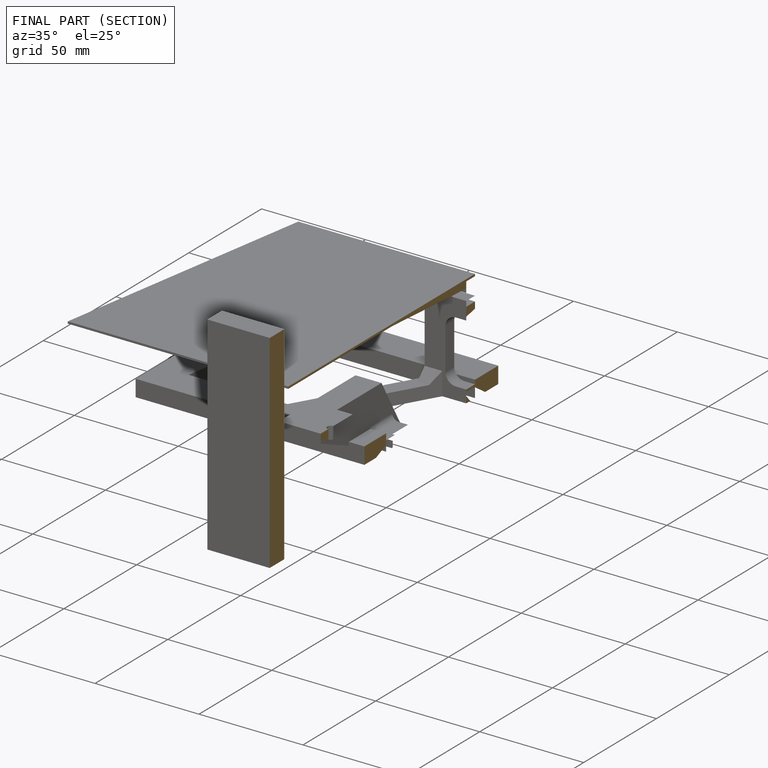
[diagram: finished part — half-section view (interior)]
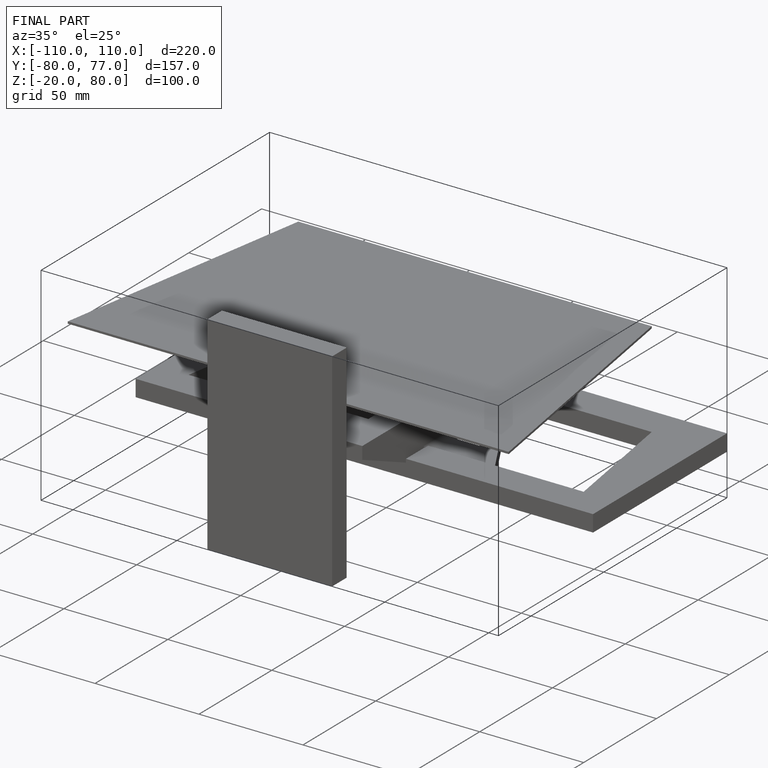
[diagram: finished part — iso view with bounding-box wireframe]
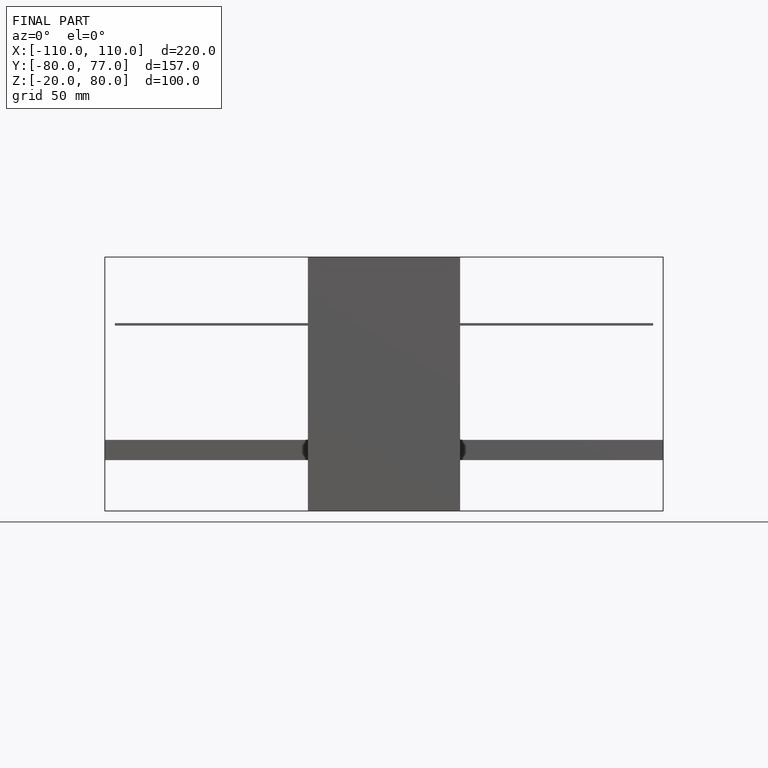
[diagram: finished part — front view with bounding-box wireframe]
